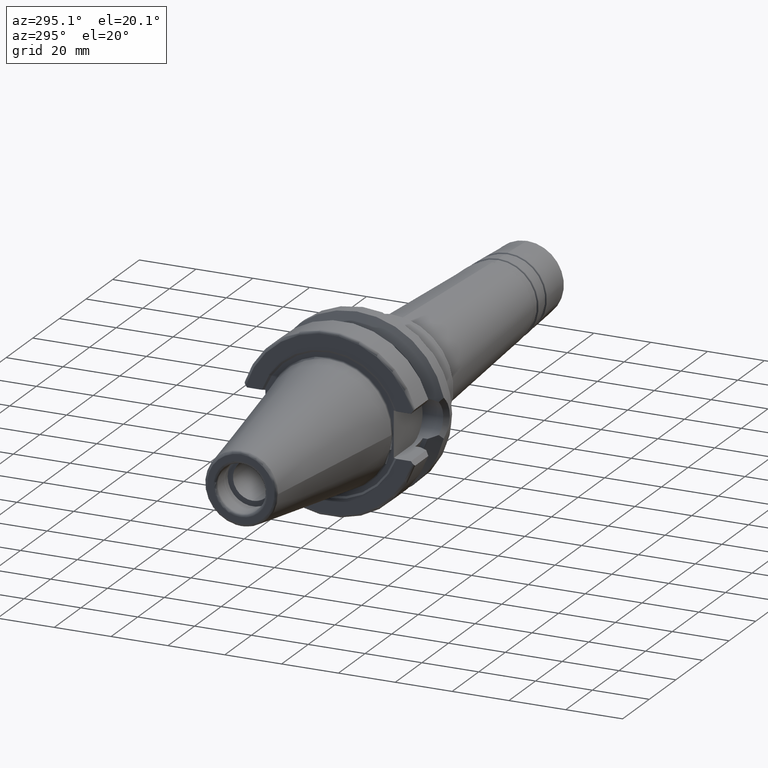
[diagram: clean part render]
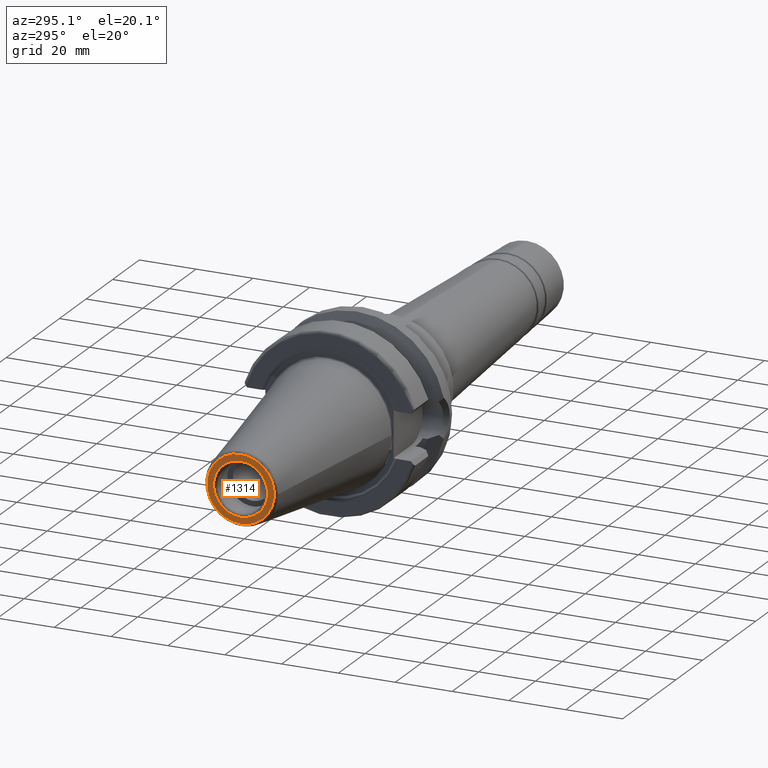
[diagram: same view with one face highlighted and labeled with its STEP entity id]
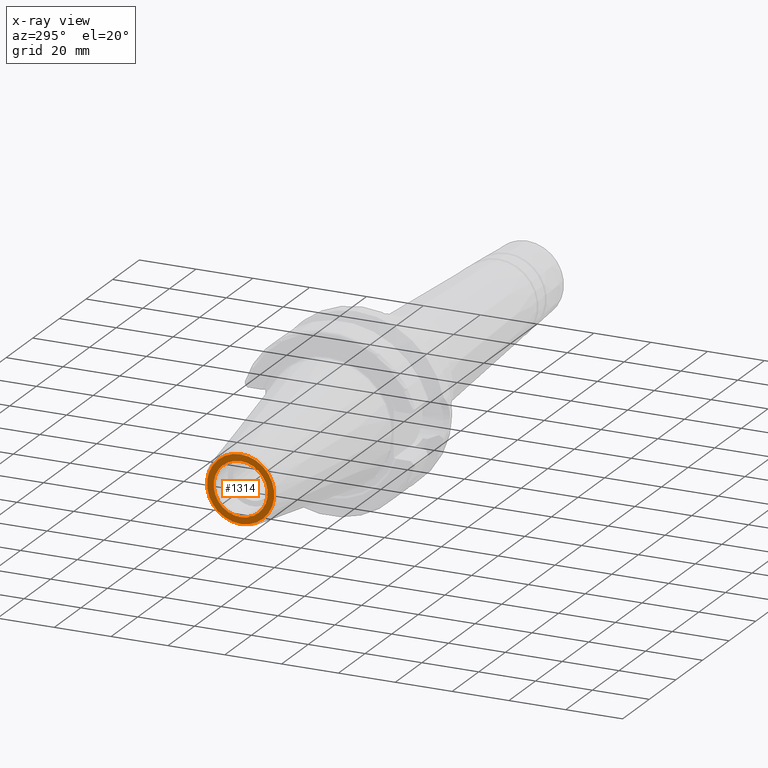
[diagram: x-ray of the same camera — body ghosted, the highlighted face saturated]
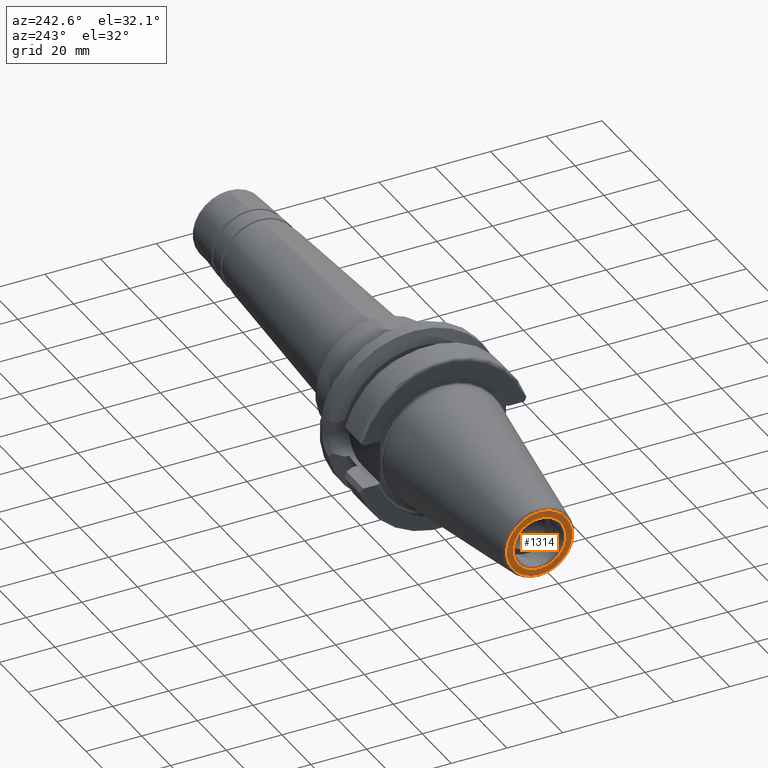
[diagram: same view with one face highlighted and labeled with its STEP entity id]
A machine part, auxiliary view. The second image highlights one B-rep face of the part: STEP entity #1314.
The next image is the same camera in x-ray: the body ghosted, the highlighted face saturated — about 0% of this face is hidden behind the body in this view.
A second angle (auxiliary view) of the same face is appended — the face is thin or edge-on in the first view.
In plain terms, the highlighted planar face has unit normal (-1, 0, 0).
Its self-contained STEP definition (entity closure, byte-faithful):
#71=FACE_BOUND('',#417,.T.);
#95=PLANE('',#1500);
#330=FACE_OUTER_BOUND('',#416,.T.);
#416=EDGE_LOOP('',(#1193));
#417=EDGE_LOOP('',(#1194));
#505=CIRCLE('',#1498,9.5);
#507=CIRCLE('',#1501,11.8227555970304);
#628=VERTEX_POINT('',#2552);
#629=VERTEX_POINT('',#2556);
#817=EDGE_CURVE('',#628,#628,#505,.T.);
#819=EDGE_CURVE('',#629,#629,#507,.T.);
#1193=ORIENTED_EDGE('',*,*,#819,.F.);
#1194=ORIENTED_EDGE('',*,*,#817,.T.);
#1314=ADVANCED_FACE('',(#330,#71),#95,.T.);
#1498=AXIS2_PLACEMENT_3D('',#2553,#1893,#1894);
#1500=AXIS2_PLACEMENT_3D('',#2555,#1897,#1898);
#1501=AXIS2_PLACEMENT_3D('',#2557,#1899,#1900);
#1893=DIRECTION('center_axis',(1.,0.,0.));
#1894=DIRECTION('ref_axis',(0.,0.,-1.));
#1897=DIRECTION('center_axis',(-1.,0.,0.));
#1898=DIRECTION('ref_axis',(0.,0.,1.));
#1899=DIRECTION('center_axis',(1.,0.,0.));
#1900=DIRECTION('ref_axis',(0.,0.,-1.));
#2552=CARTESIAN_POINT('',(-65.4,-1.16341445918999E-15,9.5));
#2553=CARTESIAN_POINT('Origin',(-65.4,0.,0.));
#2555=CARTESIAN_POINT('Origin',(-65.4,11.8227555970304,0.));
#2556=CARTESIAN_POINT('',(-65.4,-1.44786997990048E-15,11.8227555970304));
#2557=CARTESIAN_POINT('Origin',(-65.4,0.,0.));